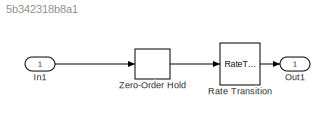
MODEL slx_5b342318b8a1
KIND model
CONFIG AbsTol = auto
CONFIG EnableMultiTasking = on
CONFIG FixedStep = 0.100000
CONFIG MaxStep = auto
CONFIG MinStep = auto
CONFIG RelTol = 1e-3
CONFIG SampleTimeConstraint = Unconstrained
CONFIG Solver = FixedStepDiscrete
CONFIG SolverName = FixedStepDiscrete
CONFIG StartTime = 0.0
CONFIG StopTime = 10.0
BLOCK [Inport] In1
  IconDisplay = Port number
  SampleTime = 0.1
BLOCK [Outport] Out1
  IconDisplay = Port number
BLOCK [RateTransition] Rate Transition
  OutPortSampleTime = 0.1
BLOCK [ZeroOrderHold] Zero-Order Hold
LINE In1:1 -> Zero-Order Hold:1
LINE Rate Transition:1 -> Out1:1
LINE Zero-Order Hold:1 -> Rate Transition:1
